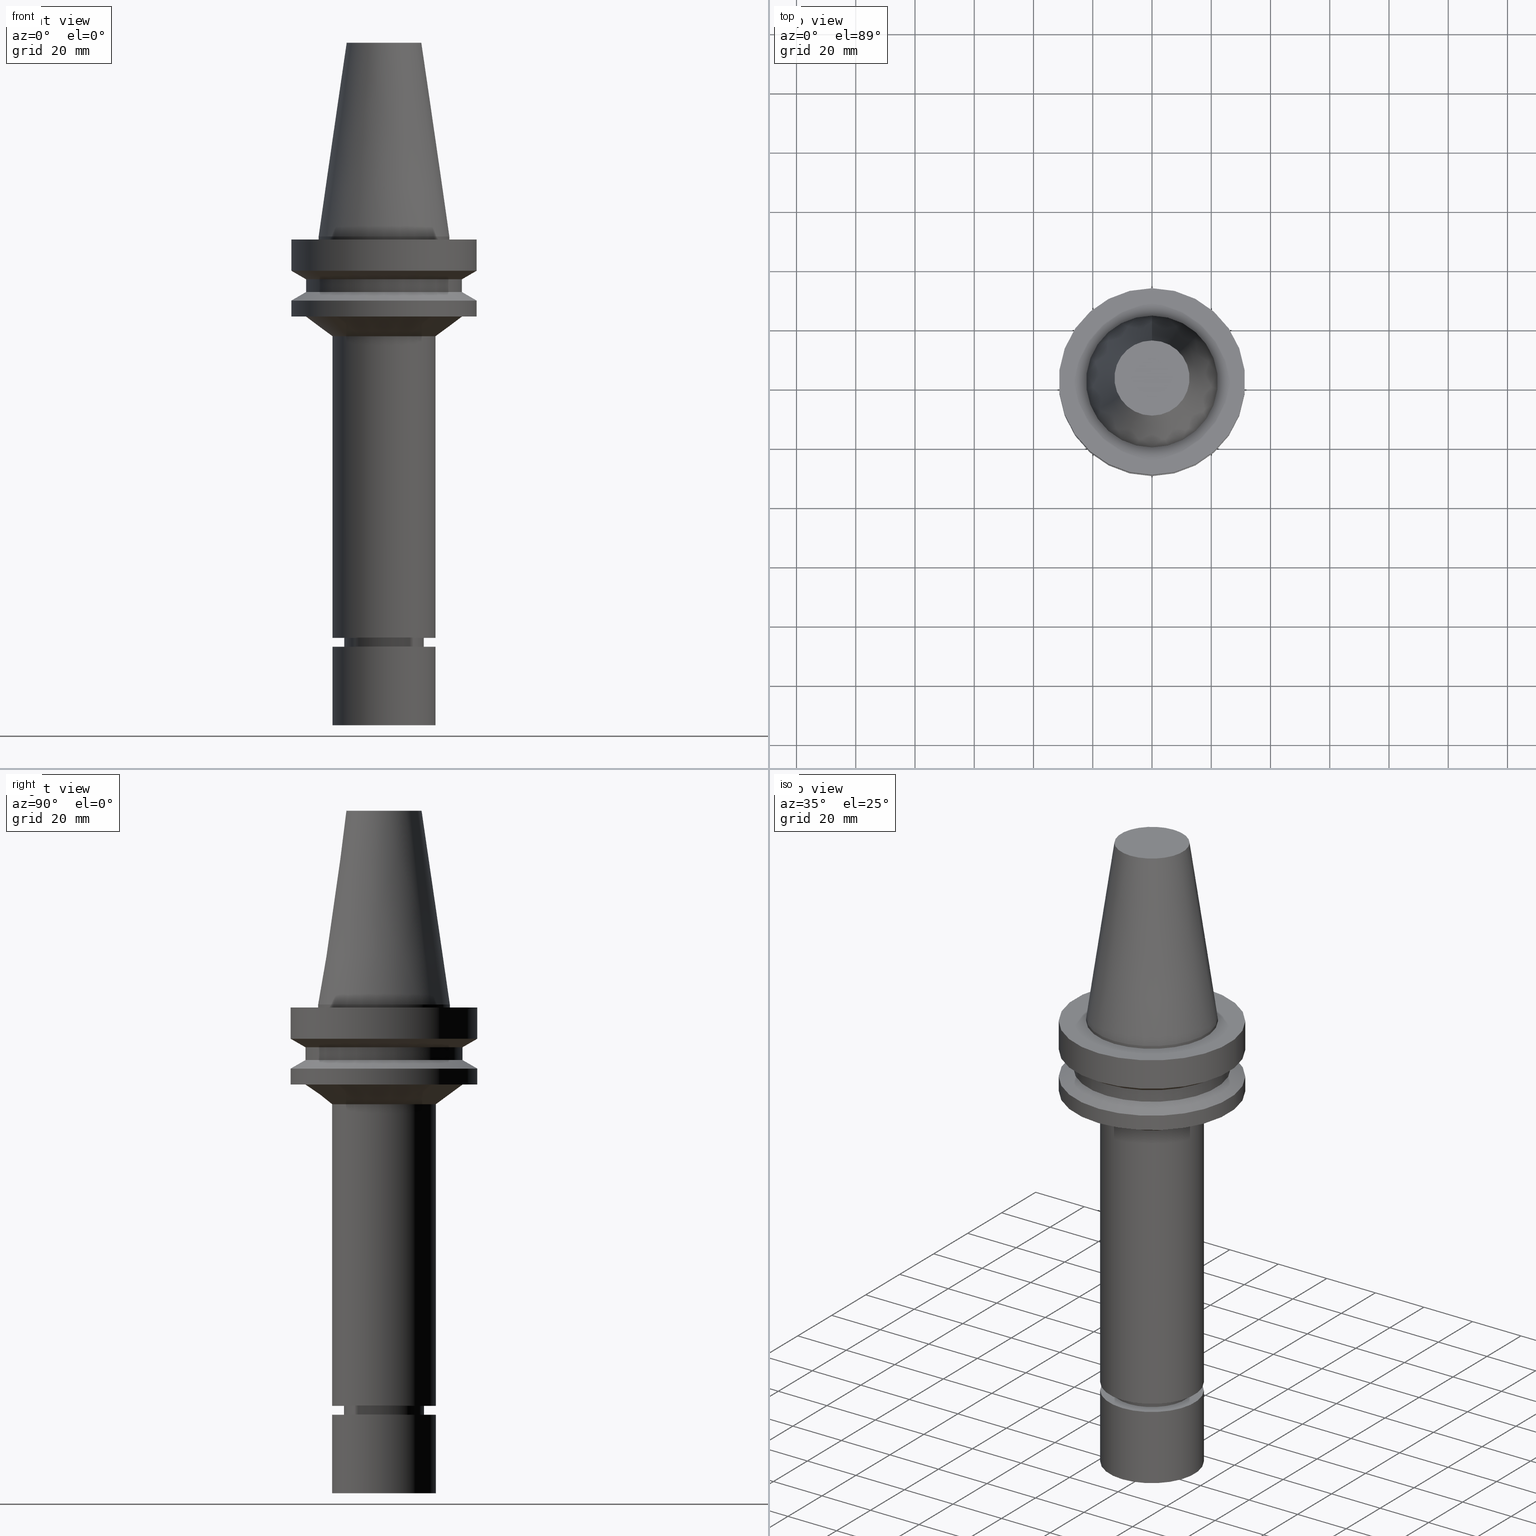
[diagram: canonical four-view strip — front | top / right | iso, engineering-drawing reading convention]
A machine part, canonical four-view strip (front | top / right | iso — engineering-drawing reading convention). The complete STEP part file that produces these views, byte-faithful:
ISO-10303-21;
HEADER;
FILE_DESCRIPTION((''),'1');
FILE_NAME('V:/90_\X2\53D65F9730C730FC30BF\X0\/00_\X2\6DE18DEF30C730FC30BF\X0\/ALL/BBT-BKUS\X2\FF76FF80FF9BFF78FF9E752852A05DE556F3\X0\201801/BBT40-MEGAER/BBT40-MEGAER20-165NL.stp','2018-02-07T02:05:35',(''),(''),'Spatial Interop R21 SP3','Kubotek KeyCreator 2011 V10.0.2 (22737)',' ');
FILE_SCHEMA(('automotive_design'));
ENDSEC;
DATA;
#1=MECHANICAL_DESIGN_GEOMETRIC_PRESENTATION_REPRESENTATION(' ',(#14,#15,#16,#17,#18,#19,#20,#21,#22,#23,#24,#25,#26,#27,#28,#29,#30,#31,#32,#33,#34,#35,#36,#37,#38,#39,#40,#41,#42,#43,#44,#45,#46,#47,#48,#49,#50,#51,#52,#53,#54,#55),#10);
#2=PRODUCT_DEFINITION_CONTEXT('',#56,'design');
#3=APPLICATION_PROTOCOL_DEFINITION('INTERNATIONAL STANDARD','automotive_design',1994,#56);
#4=PRODUCT_CATEGORY_RELATIONSHIP('NONE','NONE',#57,#58);
#5=SHAPE_DEFINITION_REPRESENTATION(#59,#60);
#6=PRODUCT_DEFINITION_CONTEXT('',#61,'design');
#7=APPLICATION_PROTOCOL_DEFINITION('INTERNATIONAL STANDARD','automotive_design',1994,#61);
#8=PRODUCT_CATEGORY_RELATIONSHIP('NONE','NONE',#62,#63);
#9=SHAPE_DEFINITION_REPRESENTATION(#64,#65);
#10= (GEOMETRIC_REPRESENTATION_CONTEXT(3)GLOBAL_UNCERTAINTY_ASSIGNED_CONTEXT((#68))GLOBAL_UNIT_ASSIGNED_CONTEXT((#70,#71,#72))REPRESENTATION_CONTEXT('NONE','WORKSPACE'));
#14=STYLED_ITEM('',(#74,#75),#76);
#15=STYLED_ITEM('',(#77,#78),#79);
#16=STYLED_ITEM('',(#80,#81),#82);
#17=STYLED_ITEM('',(#83),#84);
#18=STYLED_ITEM('',(#85,#86),#87);
#19=STYLED_ITEM('',(#88,#89),#90);
#20=STYLED_ITEM('',(#91,#92),#93);
#21=STYLED_ITEM('',(#94,#95),#96);
#22=STYLED_ITEM('',(#97),#98);
#23=STYLED_ITEM('',(#99),#100);
#24=STYLED_ITEM('',(#101,#102),#103);
#25=STYLED_ITEM('',(#104,#105),#106);
#26=STYLED_ITEM('',(#107,#108),#109);
#27=STYLED_ITEM('',(#110),#111);
#28=STYLED_ITEM('',(#112),#113);
#29=STYLED_ITEM('',(#114,#115),#116);
#30=STYLED_ITEM('',(#117),#118);
#31=STYLED_ITEM('',(#119),#120);
#32=STYLED_ITEM('',(#121),#122);
#33=STYLED_ITEM('',(#123),#124);
#34=STYLED_ITEM('',(#125),#126);
#35=STYLED_ITEM('',(#127,#128),#129);
#36=STYLED_ITEM('',(#130,#131),#132);
#37=STYLED_ITEM('',(#133,#134),#135);
#38=STYLED_ITEM('',(#136),#137);
#39=STYLED_ITEM('',(#138),#139);
#40=STYLED_ITEM('',(#140),#141);
#41=STYLED_ITEM('',(#142),#143);
#42=STYLED_ITEM('',(#144),#145);
#43=STYLED_ITEM('',(#146,#147),#148);
#44=STYLED_ITEM('',(#149,#150),#151);
#45=STYLED_ITEM('',(#152),#153);
#46=STYLED_ITEM('',(#154,#155),#156);
#47=STYLED_ITEM('',(#157,#158),#159);
#48=STYLED_ITEM('',(#160),#161);
#49=STYLED_ITEM('',(#162,#163),#164);
#50=STYLED_ITEM('',(#165),#166);
#51=STYLED_ITEM('',(#167,#168),#169);
#52=STYLED_ITEM('',(#170,#171),#172);
#53=STYLED_ITEM('',(#173,#174),#175);
#54=STYLED_ITEM('',(#176,#177),#178);
#55=STYLED_ITEM('',(#179),#180);
#56=APPLICATION_CONTEXT(' ');
#57=PRODUCT_CATEGORY('part','NONE');
#58=PRODUCT_RELATED_PRODUCT_CATEGORY('detail',' ',(#181));
#59=PRODUCT_DEFINITION_SHAPE('NONE','NONE',#182);
#60=ADVANCED_BREP_SHAPE_REPRESENTATION('Unnamed[1]',(#129,#183),#10);
#61=APPLICATION_CONTEXT(' ');
#62=PRODUCT_CATEGORY('part','NONE');
#63=PRODUCT_RELATED_PRODUCT_CATEGORY('detail',' ',(#184));
#64=PRODUCT_DEFINITION_SHAPE('NONE','NONE',#185);
#65=ADVANCED_BREP_SHAPE_REPRESENTATION('Unnamed[1]',(#172,#186),#10);
#68=UNCERTAINTY_MEASURE_WITH_UNIT(LENGTH_MEASURE(1.0E-006),#70,'','');
#70= (CONVERSION_BASED_UNIT('MILLIMETRE',#189)LENGTH_UNIT()NAMED_UNIT(#192));
#71= (NAMED_UNIT(#194)PLANE_ANGLE_UNIT()SI_UNIT($,.RADIAN.));
#72= (NAMED_UNIT(#194)SOLID_ANGLE_UNIT()SI_UNIT($,.STERADIAN.));
#74=PRESENTATION_STYLE_ASSIGNMENT((#200));
#75=PRESENTATION_STYLE_ASSIGNMENT((#201));
#76=ADVANCED_FACE('Unnamed[1]',(#202,#203),#204,.T.);
#77=PRESENTATION_STYLE_ASSIGNMENT((#205));
#78=PRESENTATION_STYLE_ASSIGNMENT((#206));
#79=ADVANCED_FACE('Unnamed[1]',(#207),#208,.T.);
#80=PRESENTATION_STYLE_ASSIGNMENT((#209));
#81=PRESENTATION_STYLE_ASSIGNMENT((#210));
#82=ADVANCED_FACE('Unnamed[1]',(#211,#212),#213,.T.);
#83=PRESENTATION_STYLE_ASSIGNMENT((#214));
#84=EDGE_CURVE('Unnamed[1]',#215,#215,#216,.T.);
#85=PRESENTATION_STYLE_ASSIGNMENT((#217));
#86=PRESENTATION_STYLE_ASSIGNMENT((#218));
#87=ADVANCED_FACE('Unnamed[1]',(#219,#220),#221,.T.);
#88=PRESENTATION_STYLE_ASSIGNMENT((#222));
#89=PRESENTATION_STYLE_ASSIGNMENT((#223));
#90=ADVANCED_FACE('Unnamed[1]',(#224,#225),#226,.T.);
#91=PRESENTATION_STYLE_ASSIGNMENT((#227));
#92=PRESENTATION_STYLE_ASSIGNMENT((#228));
#93=ADVANCED_FACE('Unnamed[1]',(#229,#230),#231,.T.);
#94=PRESENTATION_STYLE_ASSIGNMENT((#232));
#95=PRESENTATION_STYLE_ASSIGNMENT((#233));
#96=ADVANCED_FACE('Unnamed[1]',(#234),#235,.T.);
#97=PRESENTATION_STYLE_ASSIGNMENT((#236));
#98=EDGE_CURVE('Unnamed[1]',#237,#237,#238,.T.);
#99=PRESENTATION_STYLE_ASSIGNMENT((#239));
#100=EDGE_CURVE('Unnamed[1]',#240,#240,#241,.T.);
#101=PRESENTATION_STYLE_ASSIGNMENT((#242));
#102=PRESENTATION_STYLE_ASSIGNMENT((#243));
#103=ADVANCED_FACE('Unnamed[1]',(#244,#245),#246,.T.);
#104=PRESENTATION_STYLE_ASSIGNMENT((#247));
#105=PRESENTATION_STYLE_ASSIGNMENT((#248));
#106=ADVANCED_FACE('Unnamed[1]',(#249,#250),#251,.T.);
#107=PRESENTATION_STYLE_ASSIGNMENT((#252));
#108=PRESENTATION_STYLE_ASSIGNMENT((#253));
#109=ADVANCED_FACE('Unnamed[1]',(#254),#255,.T.);
#110=PRESENTATION_STYLE_ASSIGNMENT((#256));
#111=EDGE_CURVE('Unnamed[1]',#257,#257,#258,.T.);
#112=PRESENTATION_STYLE_ASSIGNMENT((#259));
#113=EDGE_CURVE('Unnamed[1]',#260,#260,#261,.T.);
#114=PRESENTATION_STYLE_ASSIGNMENT((#262));
#115=PRESENTATION_STYLE_ASSIGNMENT((#263));
#116=ADVANCED_FACE('Unnamed[1]',(#264,#265),#266,.T.);
#117=PRESENTATION_STYLE_ASSIGNMENT((#267));
#118=EDGE_CURVE('Unnamed[1]',#268,#268,#269,.T.);
#119=PRESENTATION_STYLE_ASSIGNMENT((#270));
#120=EDGE_CURVE('Unnamed[1]',#271,#271,#272,.T.);
#121=PRESENTATION_STYLE_ASSIGNMENT((#273));
#122=EDGE_CURVE('Unnamed[1]',#274,#274,#275,.T.);
#123=PRESENTATION_STYLE_ASSIGNMENT((#276));
#124=EDGE_CURVE('Unnamed[1]',#277,#277,#278,.T.);
#125=PRESENTATION_STYLE_ASSIGNMENT((#279));
#126=EDGE_CURVE('Unnamed[1]',#280,#280,#281,.T.);
#127=PRESENTATION_STYLE_ASSIGNMENT((#282));
#128=PRESENTATION_STYLE_ASSIGNMENT((#283));
#129=MANIFOLD_SOLID_BREP('Unnamed[1]',#284);
#130=PRESENTATION_STYLE_ASSIGNMENT((#285));
#131=PRESENTATION_STYLE_ASSIGNMENT((#286));
#132=ADVANCED_FACE('Unnamed[1]',(#287,#288),#289,.T.);
#133=PRESENTATION_STYLE_ASSIGNMENT((#290));
#134=PRESENTATION_STYLE_ASSIGNMENT((#291));
#135=ADVANCED_FACE('Unnamed[1]',(#292,#293),#294,.T.);
#136=PRESENTATION_STYLE_ASSIGNMENT((#295));
#137=EDGE_CURVE('Unnamed[1]',#296,#296,#297,.T.);
#138=PRESENTATION_STYLE_ASSIGNMENT((#298));
#139=EDGE_CURVE('Unnamed[1]',#299,#299,#300,.T.);
#140=PRESENTATION_STYLE_ASSIGNMENT((#301));
#141=EDGE_CURVE('Unnamed[1]',#302,#302,#303,.T.);
#142=PRESENTATION_STYLE_ASSIGNMENT((#304));
#143=EDGE_CURVE('Unnamed[1]',#305,#305,#306,.T.);
#144=PRESENTATION_STYLE_ASSIGNMENT((#307));
#145=EDGE_CURVE('Unnamed[1]',#308,#308,#309,.T.);
#146=PRESENTATION_STYLE_ASSIGNMENT((#310));
#147=PRESENTATION_STYLE_ASSIGNMENT((#311));
#148=ADVANCED_FACE('Unnamed[1]',(#312,#313),#314,.T.);
#149=PRESENTATION_STYLE_ASSIGNMENT((#315));
#150=PRESENTATION_STYLE_ASSIGNMENT((#316));
#151=ADVANCED_FACE('Unnamed[1]',(#317),#318,.T.);
#152=PRESENTATION_STYLE_ASSIGNMENT((#319));
#153=EDGE_CURVE('Unnamed[1]',#320,#320,#321,.T.);
#154=PRESENTATION_STYLE_ASSIGNMENT((#322));
#155=PRESENTATION_STYLE_ASSIGNMENT((#323));
#156=ADVANCED_FACE('Unnamed[1]',(#324,#325),#326,.T.);
#157=PRESENTATION_STYLE_ASSIGNMENT((#327));
#158=PRESENTATION_STYLE_ASSIGNMENT((#328));
#159=ADVANCED_FACE('Unnamed[1]',(#329,#330),#331,.T.);
#160=PRESENTATION_STYLE_ASSIGNMENT((#332));
#161=EDGE_CURVE('Unnamed[1]',#333,#333,#334,.T.);
#162=PRESENTATION_STYLE_ASSIGNMENT((#335));
#163=PRESENTATION_STYLE_ASSIGNMENT((#336));
#164=ADVANCED_FACE('Unnamed[1]',(#337,#338),#339,.T.);
#165=PRESENTATION_STYLE_ASSIGNMENT((#340));
#166=EDGE_CURVE('Unnamed[1]',#341,#341,#342,.T.);
#167=PRESENTATION_STYLE_ASSIGNMENT((#343));
#168=PRESENTATION_STYLE_ASSIGNMENT((#344));
#169=ADVANCED_FACE('Unnamed[1]',(#345,#346),#347,.T.);
#170=PRESENTATION_STYLE_ASSIGNMENT((#348));
#171=PRESENTATION_STYLE_ASSIGNMENT((#349));
#172=MANIFOLD_SOLID_BREP('Unnamed[1]',#350);
#173=PRESENTATION_STYLE_ASSIGNMENT((#351));
#174=PRESENTATION_STYLE_ASSIGNMENT((#352));
#175=ADVANCED_FACE('Unnamed[1]',(#353,#354),#355,.T.);
#176=PRESENTATION_STYLE_ASSIGNMENT((#356));
#177=PRESENTATION_STYLE_ASSIGNMENT((#357));
#178=ADVANCED_FACE('Unnamed[1]',(#358,#359),#360,.T.);
#179=PRESENTATION_STYLE_ASSIGNMENT((#361));
#180=EDGE_CURVE('Unnamed[1]',#362,#362,#363,.T.);
#181=PRODUCT('Unnamed[1]','Unnamed[1]','PART-Unnamed[1]-DESC',(#364));
#182=PRODUCT_DEFINITION('NONE','NONE',#365,#2);
#183=AXIS2_PLACEMENT_3D('',#366,#367,#368);
#184=PRODUCT('Unnamed[1]','Unnamed[1]','PART-Unnamed[1]-DESC',(#369));
#185=PRODUCT_DEFINITION('NONE','NONE',#370,#6);
#186=AXIS2_PLACEMENT_3D('',#371,#372,#373);
#189=LENGTH_MEASURE_WITH_UNIT(LENGTH_MEASURE(1.0),#374);
#192=DIMENSIONAL_EXPONENTS(1.0,0.0,0.0,0.0,0.0,0.0,0.0);
#194=DIMENSIONAL_EXPONENTS(0.0,0.0,0.0,0.0,0.0,0.0,0.0);
#200=SURFACE_STYLE_USAGE(.BOTH.,#375);
#201=CURVE_STYLE('',#376,POSITIVE_LENGTH_MEASURE(1000.0),#377);
#202=FACE_BOUND('',#378,.T.);
#203=FACE_BOUND('',#379,.T.);
#204=CYLINDRICAL_SURFACE('',#380,17.5000000000003);
#205=SURFACE_STYLE_USAGE(.BOTH.,#381);
#206=CURVE_STYLE('',#382,POSITIVE_LENGTH_MEASURE(1000.0),#383);
#207=FACE_OUTER_BOUND('',#384,.T.);
#208=PLANE('',#385);
#209=SURFACE_STYLE_USAGE(.BOTH.,#386);
#210=CURVE_STYLE('',#387,POSITIVE_LENGTH_MEASURE(1000.0),#388);
#211=FACE_BOUND('',#389,.T.);
#212=FACE_BOUND('',#390,.T.);
#213=CONICAL_SURFACE('',#391,22.0222908518337,0.935754396976013);
#214=CURVE_STYLE('',#392,POSITIVE_LENGTH_MEASURE(1000.0),#393);
#215=VERTEX_POINT('',#394);
#216=CIRCLE('',#395,26.5445817036666);
#217=SURFACE_STYLE_USAGE(.BOTH.,#396);
#218=CURVE_STYLE('',#397,POSITIVE_LENGTH_MEASURE(1000.0),#398);
#219=FACE_BOUND('',#399,.T.);
#220=FACE_BOUND('',#400,.T.);
#221=CYLINDRICAL_SURFACE('',#401,13.4999999999956);
#222=SURFACE_STYLE_USAGE(.BOTH.,#402);
#223=CURVE_STYLE('',#403,POSITIVE_LENGTH_MEASURE(1000.0),#404);
#224=FACE_BOUND('',#405,.T.);
#225=FACE_BOUND('',#406,.T.);
#226=CONICAL_SURFACE('',#407,13.0000000000001,1.0471975511948);
#227=SURFACE_STYLE_USAGE(.BOTH.,#408);
#228=CURVE_STYLE('',#409,POSITIVE_LENGTH_MEASURE(1000.0),#410);
#229=FACE_BOUND('',#411,.T.);
#230=FACE_BOUND('',#412,.T.);
#231=CONICAL_SURFACE('',#413,11.9499999999987,0.523598775598648);
#232=SURFACE_STYLE_USAGE(.BOTH.,#414);
#233=CURVE_STYLE('',#415,POSITIVE_LENGTH_MEASURE(1000.0),#416);
#234=FACE_OUTER_BOUND('',#417,.T.);
#235=PLANE('',#418);
#236=CURVE_STYLE('',#419,POSITIVE_LENGTH_MEASURE(1000.0),#420);
#237=VERTEX_POINT('',#421);
#238=CIRCLE('',#422,12.6875000000001);
#239=CURVE_STYLE('',#423,POSITIVE_LENGTH_MEASURE(1000.0),#424);
#240=VERTEX_POINT('',#425);
#241=CIRCLE('',#426,22.225);
#242=SURFACE_STYLE_USAGE(.BOTH.,#427);
#243=CURVE_STYLE('',#428,POSITIVE_LENGTH_MEASURE(1000.0),#429);
#244=FACE_BOUND('',#430,.T.);
#245=FACE_BOUND('',#431,.T.);
#246=CYLINDRICAL_SURFACE('',#432,31.5000000000005);
#247=SURFACE_STYLE_USAGE(.BOTH.,#433);
#248=CURVE_STYLE('',#434,POSITIVE_LENGTH_MEASURE(1000.0),#435);
#249=FACE_BOUND('',#436,.T.);
#250=FACE_BOUND('',#437,.T.);
#251=CYLINDRICAL_SURFACE('',#438,12.4999999999998);
#252=SURFACE_STYLE_USAGE(.BOTH.,#439);
#253=CURVE_STYLE('',#440,POSITIVE_LENGTH_MEASURE(1000.0),#441);
#254=FACE_OUTER_BOUND('',#442,.T.);
#255=PLANE('',#443);
#256=CURVE_STYLE('',#444,POSITIVE_LENGTH_MEASURE(1000.0),#445);
#257=VERTEX_POINT('',#446);
#258=CIRCLE('',#447,13.5000000000004);
#259=CURVE_STYLE('',#448,POSITIVE_LENGTH_MEASURE(1000.0),#449);
#260=VERTEX_POINT('',#450);
#261=CIRCLE('',#451,12.4999999999997);
#262=SURFACE_STYLE_USAGE(.BOTH.,#452);
#263=CURVE_STYLE('',#453,POSITIVE_LENGTH_MEASURE(1000.0),#454);
#264=FACE_BOUND('',#455,.T.);
#265=FACE_OUTER_BOUND('',#456,.T.);
#266=PLANE('',#457);
#267=CURVE_STYLE('',#458,POSITIVE_LENGTH_MEASURE(1000.0),#459);
#268=VERTEX_POINT('',#460);
#269=CIRCLE('',#461,31.5000000000003);
#270=CURVE_STYLE('',#462,POSITIVE_LENGTH_MEASURE(1000.0),#463);
#271=VERTEX_POINT('',#464);
#272=CIRCLE('',#465,26.4999999999994);
#273=CURVE_STYLE('',#466,POSITIVE_LENGTH_MEASURE(1000.0),#467);
#274=VERTEX_POINT('',#468);
#275=CIRCLE('',#469,17.4999999999998);
#276=CURVE_STYLE('',#470,POSITIVE_LENGTH_MEASURE(1000.0),#471);
#277=VERTEX_POINT('',#472);
#278=CIRCLE('',#473,22.225);
#279=CURVE_STYLE('',#474,POSITIVE_LENGTH_MEASURE(1000.0),#475);
#280=VERTEX_POINT('',#476);
#281=CIRCLE('',#477,31.5000000000006);
#282=SURFACE_STYLE_USAGE(.BOTH.,#478);
#283=CURVE_STYLE('',#479,POSITIVE_LENGTH_MEASURE(1000.0),#480);
#284=CLOSED_SHELL('',(#79,#132,#169,#159,#164,#148,#175,#178,#103,#156,#82,#76,#116,#87,#90,#106,#93,#96));
#285=SURFACE_STYLE_USAGE(.BOTH.,#481);
#286=CURVE_STYLE('',#482,POSITIVE_LENGTH_MEASURE(1000.0),#483);
#287=FACE_BOUND('',#484,.T.);
#288=FACE_BOUND('',#485,.T.);
#289=CONICAL_SURFACE('',#486,17.45625,0.144812498238936);
#290=SURFACE_STYLE_USAGE(.BOTH.,#487);
#291=CURVE_STYLE('',#488,POSITIVE_LENGTH_MEASURE(1000.0),#489);
#292=FACE_BOUND('',#490,.T.);
#293=FACE_BOUND('',#491,.T.);
#294=CYLINDRICAL_SURFACE('',#492,17.4999999999999);
#295=CURVE_STYLE('',#493,POSITIVE_LENGTH_MEASURE(1000.0),#494);
#296=VERTEX_POINT('',#495);
#297=CIRCLE('',#496,17.4999999999999);
#298=CURVE_STYLE('',#497,POSITIVE_LENGTH_MEASURE(1000.0),#498);
#299=VERTEX_POINT('',#499);
#300=CIRCLE('',#500,12.4999999999998);
#301=CURVE_STYLE('',#501,POSITIVE_LENGTH_MEASURE(1000.0),#502);
#302=VERTEX_POINT('',#503);
#303=CIRCLE('',#504,26.5);
#304=CURVE_STYLE('',#505,POSITIVE_LENGTH_MEASURE(1000.0),#506);
#305=VERTEX_POINT('',#507);
#306=CIRCLE('',#508,31.4999999999996);
#307=CURVE_STYLE('',#509,POSITIVE_LENGTH_MEASURE(1000.0),#510);
#308=VERTEX_POINT('',#511);
#309=CIRCLE('',#512,13.4999999999907);
#310=SURFACE_STYLE_USAGE(.BOTH.,#513);
#311=CURVE_STYLE('',#514,POSITIVE_LENGTH_MEASURE(1000.0),#515);
#312=FACE_BOUND('',#516,.T.);
#313=FACE_BOUND('',#517,.T.);
#314=CONICAL_SURFACE('',#518,28.9999999999999,1.04719755119657);
#315=SURFACE_STYLE_USAGE(.BOTH.,#519);
#316=CURVE_STYLE('',#520,POSITIVE_LENGTH_MEASURE(1000.0),#521);
#317=FACE_OUTER_BOUND('',#522,.T.);
#318=PLANE('',#523);
#319=CURVE_STYLE('',#524,POSITIVE_LENGTH_MEASURE(1000.0),#525);
#320=VERTEX_POINT('',#526);
#321=CIRCLE('',#527,11.3999999999977);
#322=SURFACE_STYLE_USAGE(.BOTH.,#528);
#323=CURVE_STYLE('',#529,POSITIVE_LENGTH_MEASURE(1000.0),#530);
#324=FACE_BOUND('',#531,.T.);
#325=FACE_OUTER_BOUND('',#532,.T.);
#326=PLANE('',#533);
#327=SURFACE_STYLE_USAGE(.BOTH.,#534);
#328=CURVE_STYLE('',#535,POSITIVE_LENGTH_MEASURE(1000.0),#536);
#329=FACE_OUTER_BOUND('',#537,.T.);
#330=FACE_BOUND('',#538,.T.);
#331=PLANE('',#539);
#332=CURVE_STYLE('',#540,POSITIVE_LENGTH_MEASURE(1000.0),#541);
#333=VERTEX_POINT('',#542);
#334=CIRCLE('',#543,17.5000000000009);
#335=SURFACE_STYLE_USAGE(.BOTH.,#544);
#336=CURVE_STYLE('',#545,POSITIVE_LENGTH_MEASURE(1000.0),#546);
#337=FACE_BOUND('',#547,.T.);
#338=FACE_BOUND('',#548,.T.);
#339=CYLINDRICAL_SURFACE('',#549,31.5);
#340=CURVE_STYLE('',#550,POSITIVE_LENGTH_MEASURE(1000.0),#551);
#341=VERTEX_POINT('',#552);
#342=CIRCLE('',#553,31.5000000000003);
#343=SURFACE_STYLE_USAGE(.BOTH.,#554);
#344=CURVE_STYLE('',#555,POSITIVE_LENGTH_MEASURE(1000.0),#556);
#345=FACE_BOUND('',#557,.T.);
#346=FACE_BOUND('',#558,.T.);
#347=CYLINDRICAL_SURFACE('',#559,22.225);
#348=SURFACE_STYLE_USAGE(.BOTH.,#560);
#349=CURVE_STYLE('',#561,POSITIVE_LENGTH_MEASURE(1000.0),#562);
#350=CLOSED_SHELL('',(#151,#109,#135));
#351=SURFACE_STYLE_USAGE(.BOTH.,#563);
#352=CURVE_STYLE('',#564,POSITIVE_LENGTH_MEASURE(1000.0),#565);
#353=FACE_BOUND('',#566,.T.);
#354=FACE_BOUND('',#567,.T.);
#355=CYLINDRICAL_SURFACE('',#568,26.4999999999997);
#356=SURFACE_STYLE_USAGE(.BOTH.,#569);
#357=CURVE_STYLE('',#570,POSITIVE_LENGTH_MEASURE(1000.0),#571);
#358=FACE_BOUND('',#572,.T.);
#359=FACE_BOUND('',#573,.T.);
#360=CONICAL_SURFACE('',#574,29.0000000000003,1.04719755119651);
#361=CURVE_STYLE('',#575,POSITIVE_LENGTH_MEASURE(1000.0),#576);
#362=VERTEX_POINT('',#577);
#363=CIRCLE('',#578,17.4999999999999);
#364=PRODUCT_CONTEXT('',#56,'mechanical');
#365=PRODUCT_DEFINITION_FORMATION_WITH_SPECIFIED_SOURCE(' ','NONE',#181,.NOT_KNOWN.);
#366=CARTESIAN_POINT('',(0.0,0.0,0.0));
#367=DIRECTION('',(0.0,0.0,1.0));
#368=DIRECTION('',(1.0,0.0,0.0));
#369=PRODUCT_CONTEXT('',#61,'mechanical');
#370=PRODUCT_DEFINITION_FORMATION_WITH_SPECIFIED_SOURCE(' ','NONE',#184,.NOT_KNOWN.);
#371=CARTESIAN_POINT('',(0.0,0.0,0.0));
#372=DIRECTION('',(0.0,0.0,1.0));
#373=DIRECTION('',(1.0,0.0,0.0));
#374= (NAMED_UNIT(#192)LENGTH_UNIT()SI_UNIT(.MILLI.,.METRE.));
#375=SURFACE_SIDE_STYLE('',(#580));
#376=DRAUGHTING_PRE_DEFINED_CURVE_FONT('continuous');
#377=COLOUR_RGB('',0.0,1.0,0.0);
#378=EDGE_LOOP('',(#581));
#379=EDGE_LOOP('',(#582));
#380=AXIS2_PLACEMENT_3D('',#583,#584,#585);
#381=SURFACE_SIDE_STYLE('',(#586));
#382=DRAUGHTING_PRE_DEFINED_CURVE_FONT('continuous');
#383=COLOUR_RGB('',0.0,1.0,0.0);
#384=EDGE_LOOP('',(#587));
#385=AXIS2_PLACEMENT_3D('',#588,#589,#590);
#386=SURFACE_SIDE_STYLE('',(#591));
#387=DRAUGHTING_PRE_DEFINED_CURVE_FONT('continuous');
#388=COLOUR_RGB('',0.0,1.0,0.0);
#389=EDGE_LOOP('',(#592));
#390=EDGE_LOOP('',(#593));
#391=AXIS2_PLACEMENT_3D('',#594,#595,#596);
#392=DRAUGHTING_PRE_DEFINED_CURVE_FONT('continuous');
#393=COLOUR_RGB('',0.0,1.0,0.0);
#394=CARTESIAN_POINT('',(1.65327317884891E-015,26.5445817036666,-26.9999999999998));
#395=AXIS2_PLACEMENT_3D('',#597,#598,#599);
#396=SURFACE_SIDE_STYLE('',(#600));
#397=DRAUGHTING_PRE_DEFINED_CURVE_FONT('continuous');
#398=COLOUR_RGB('',0.0,1.0,0.0);
#399=EDGE_LOOP('',(#601));
#400=EDGE_LOOP('',(#602));
#401=AXIS2_PLACEMENT_3D('',#603,#604,#605);
#402=SURFACE_SIDE_STYLE('',(#606));
#403=DRAUGHTING_PRE_DEFINED_CURVE_FONT('continuous');
#404=COLOUR_RGB('',0.0,1.0,0.0);
#405=EDGE_LOOP('',(#607));
#406=EDGE_LOOP('',(#608));
#407=AXIS2_PLACEMENT_3D('',#609,#610,#611);
#408=SURFACE_SIDE_STYLE('',(#612));
#409=DRAUGHTING_PRE_DEFINED_CURVE_FONT('continuous');
#410=COLOUR_RGB('',0.0,1.0,0.0);
#411=EDGE_LOOP('',(#613));
#412=EDGE_LOOP('',(#614));
#413=AXIS2_PLACEMENT_3D('',#615,#616,#617);
#414=SURFACE_SIDE_STYLE('',(#618));
#415=DRAUGHTING_PRE_DEFINED_CURVE_FONT('continuous');
#416=COLOUR_RGB('',0.0,1.0,0.0);
#417=EDGE_LOOP('',(#619));
#418=AXIS2_PLACEMENT_3D('',#620,#621,#622);
#419=DRAUGHTING_PRE_DEFINED_CURVE_FONT('continuous');
#420=COLOUR_RGB('',0.0,1.0,0.0);
#421=CARTESIAN_POINT('',(-4.00459503321185E-015,12.6875000000002,65.4000000000001));
#422=AXIS2_PLACEMENT_3D('',#623,#624,#625);
#423=DRAUGHTING_PRE_DEFINED_CURVE_FONT('continuous');
#424=COLOUR_RGB('',0.0,1.0,0.0);
#425=CARTESIAN_POINT('',(6.12323399573622E-017,22.2250000000001,-0.999999999999912));
#426=AXIS2_PLACEMENT_3D('',#626,#627,#628);
#427=SURFACE_SIDE_STYLE('',(#629));
#428=DRAUGHTING_PRE_DEFINED_CURVE_FONT('continuous');
#429=COLOUR_RGB('',0.0,1.0,0.0);
#430=EDGE_LOOP('',(#630));
#431=EDGE_LOOP('',(#631));
#432=AXIS2_PLACEMENT_3D('',#632,#633,#634);
#433=SURFACE_SIDE_STYLE('',(#635));
#434=DRAUGHTING_PRE_DEFINED_CURVE_FONT('continuous');
#435=COLOUR_RGB('',0.0,1.0,0.0);
#436=EDGE_LOOP('',(#636));
#437=EDGE_LOOP('',(#637));
#438=AXIS2_PLACEMENT_3D('',#638,#639,#640);
#439=SURFACE_SIDE_STYLE('',(#641));
#440=DRAUGHTING_PRE_DEFINED_CURVE_FONT('continuous');
#441=COLOUR_RGB('',0.0,1.0,0.0);
#442=EDGE_LOOP('',(#642));
#443=AXIS2_PLACEMENT_3D('',#643,#644,#645);
#444=DRAUGHTING_PRE_DEFINED_CURVE_FONT('continuous');
#445=COLOUR_RGB('',0.0,1.0,0.0);
#446=CARTESIAN_POINT('',(8.65349663972404E-015,13.5000000000005,-141.322324865405));
#447=AXIS2_PLACEMENT_3D('',#646,#647,#648);
#448=DRAUGHTING_PRE_DEFINED_CURVE_FONT('continuous');
#449=COLOUR_RGB('',0.0,1.0,0.0);
#450=CARTESIAN_POINT('',(9.38659588512361E-015,12.4999999999998,-153.294744111672));
#451=AXIS2_PLACEMENT_3D('',#649,#650,#651);
#452=SURFACE_SIDE_STYLE('',(#652));
#453=DRAUGHTING_PRE_DEFINED_CURVE_FONT('continuous');
#454=COLOUR_RGB('',0.0,1.0,0.0);
#455=EDGE_LOOP('',(#653));
#456=EDGE_LOOP('',(#654));
#457=AXIS2_PLACEMENT_3D('',#655,#656,#657);
#458=DRAUGHTING_PRE_DEFINED_CURVE_FONT('continuous');
#459=COLOUR_RGB('',0.0,1.0,0.0);
#460=CARTESIAN_POINT('',(1.65327317884891E-015,31.5000000000004,-26.9999999999998));
#461=AXIS2_PLACEMENT_3D('',#658,#659,#660);
#462=DRAUGHTING_PRE_DEFINED_CURVE_FONT('continuous');
#463=COLOUR_RGB('',0.0,1.0,0.0);
#464=CARTESIAN_POINT('',(8.8494551369045E-016,26.4999999999995,-14.4522569986152));
#465=AXIS2_PLACEMENT_3D('',#661,#662,#663);
#466=DRAUGHTING_PRE_DEFINED_CURVE_FONT('continuous');
#467=COLOUR_RGB('',0.0,1.0,0.0);
#468=CARTESIAN_POINT('',(8.2969820642233E-015,17.4999999999999,-135.5));
#469=AXIS2_PLACEMENT_3D('',#664,#665,#666);
#470=DRAUGHTING_PRE_DEFINED_CURVE_FONT('continuous');
#471=COLOUR_RGB('',0.0,1.0,0.0);
#472=CARTESIAN_POINT('',(1.71319921032766E-029,22.2250000000001,-2.8153873565375E-013));
#473=AXIS2_PLACEMENT_3D('',#667,#668,#669);
#474=DRAUGHTING_PRE_DEFINED_CURVE_FONT('continuous');
#475=COLOUR_RGB('',0.0,1.0,0.0);
#476=CARTESIAN_POINT('',(1.32473071268174E-015,31.5000000000007,-21.6344943473346));
#477=AXIS2_PLACEMENT_3D('',#670,#671,#672);
#478=SURFACE_SIDE_STYLE('',(#673));
#479=DRAUGHTING_PRE_DEFINED_CURVE_FONT('continuous');
#480=COLOUR_RGB('',0.0,1.0,0.0);
#481=SURFACE_SIDE_STYLE('',(#674));
#482=DRAUGHTING_PRE_DEFINED_CURVE_FONT('continuous');
#483=COLOUR_RGB('',0.0,1.0,0.0);
#484=EDGE_LOOP('',(#675));
#485=EDGE_LOOP('',(#676));
#486=AXIS2_PLACEMENT_3D('',#677,#678,#679);
#487=SURFACE_SIDE_STYLE('',(#680));
#488=DRAUGHTING_PRE_DEFINED_CURVE_FONT('continuous');
#489=COLOUR_RGB('',0.0,1.0,0.0);
#490=EDGE_LOOP('',(#681));
#491=EDGE_LOOP('',(#682));
#492=AXIS2_PLACEMENT_3D('',#683,#684,#685);
#493=DRAUGHTING_PRE_DEFINED_CURVE_FONT('continuous');
#494=COLOUR_RGB('',0.0,1.0,0.0);
#495=CARTESIAN_POINT('',(1.01033360929657E-014,17.5,-165.0));
#496=AXIS2_PLACEMENT_3D('',#686,#687,#688);
#497=DRAUGHTING_PRE_DEFINED_CURVE_FONT('continuous');
#498=COLOUR_RGB('',0.0,1.0,0.0);
#499=CARTESIAN_POINT('',(8.6888491476817E-015,12.4999999999999,-141.899675134597));
#500=AXIS2_PLACEMENT_3D('',#689,#690,#691);
#501=DRAUGHTING_PRE_DEFINED_CURVE_FONT('continuous');
#502=COLOUR_RGB('',0.0,1.0,0.0);
#503=CARTESIAN_POINT('',(1.1479681728942E-015,26.5,-18.7477430013855));
#504=AXIS2_PLACEMENT_3D('',#692,#693,#694);
#505=DRAUGHTING_PRE_DEFINED_CURVE_FONT('continuous');
#506=COLOUR_RGB('',0.0,1.0,0.0);
#507=CARTESIAN_POINT('',(6.12323399573568E-017,31.4999999999997,-0.999999999999825));
#508=AXIS2_PLACEMENT_3D('',#695,#696,#697);
#509=DRAUGHTING_PRE_DEFINED_CURVE_FONT('continuous');
#510=COLOUR_RGB('',0.0,1.0,0.0);
#511=CARTESIAN_POINT('',(8.29698206422329E-015,13.4999999999908,-135.5));
#512=AXIS2_PLACEMENT_3D('',#698,#699,#700);
#513=SURFACE_SIDE_STYLE('',(#701));
#514=DRAUGHTING_PRE_DEFINED_CURVE_FONT('continuous');
#515=COLOUR_RGB('',0.0,1.0,0.0);
#516=EDGE_LOOP('',(#702));
#517=EDGE_LOOP('',(#703));
#518=AXIS2_PLACEMENT_3D('',#704,#705,#706);
#519=SURFACE_SIDE_STYLE('',(#707));
#520=DRAUGHTING_PRE_DEFINED_CURVE_FONT('continuous');
#521=COLOUR_RGB('',0.0,1.0,0.0);
#522=EDGE_LOOP('',(#708));
#523=AXIS2_PLACEMENT_3D('',#709,#710,#711);
#524=DRAUGHTING_PRE_DEFINED_CURVE_FONT('continuous');
#525=COLOUR_RGB('',0.0,1.0,0.0);
#526=CARTESIAN_POINT('',(9.50325916138347E-015,11.3999999999978,-155.2));
#527=AXIS2_PLACEMENT_3D('',#712,#713,#714);
#528=SURFACE_SIDE_STYLE('',(#715));
#529=DRAUGHTING_PRE_DEFINED_CURVE_FONT('continuous');
#530=COLOUR_RGB('',0.0,1.0,0.0);
#531=EDGE_LOOP('',(#716));
#532=EDGE_LOOP('',(#717));
#533=AXIS2_PLACEMENT_3D('',#718,#719,#720);
#534=SURFACE_SIDE_STYLE('',(#721));
#535=DRAUGHTING_PRE_DEFINED_CURVE_FONT('continuous');
#536=COLOUR_RGB('',0.0,1.0,0.0);
#537=EDGE_LOOP('',(#722));
#538=EDGE_LOOP('',(#723));
#539=AXIS2_PLACEMENT_3D('',#724,#725,#726);
#540=DRAUGHTING_PRE_DEFINED_CURVE_FONT('continuous');
#541=COLOUR_RGB('',0.0,1.0,0.0);
#542=CARTESIAN_POINT('',(2.0613647219023E-015,17.5000000000009,-33.6646406676195));
#543=AXIS2_PLACEMENT_3D('',#727,#728,#729);
#544=SURFACE_SIDE_STYLE('',(#730));
#545=DRAUGHTING_PRE_DEFINED_CURVE_FONT('continuous');
#546=COLOUR_RGB('',0.0,1.0,0.0);
#547=EDGE_LOOP('',(#731));
#548=EDGE_LOOP('',(#732));
#549=AXIS2_PLACEMENT_3D('',#733,#734,#735);
#550=DRAUGHTING_PRE_DEFINED_CURVE_FONT('continuous');
#551=COLOUR_RGB('',0.0,1.0,0.0);
#552=CARTESIAN_POINT('',(7.08182973902924E-016,31.5000000000004,-11.5655056526664));
#553=AXIS2_PLACEMENT_3D('',#736,#737,#738);
#554=SURFACE_SIDE_STYLE('',(#739));
#555=DRAUGHTING_PRE_DEFINED_CURVE_FONT('continuous');
#556=COLOUR_RGB('',0.0,1.0,0.0);
#557=EDGE_LOOP('',(#740));
#558=EDGE_LOOP('',(#741));
#559=AXIS2_PLACEMENT_3D('',#742,#743,#744);
#560=SURFACE_SIDE_STYLE('',(#745));
#561=DRAUGHTING_PRE_DEFINED_CURVE_FONT('continuous');
#562=COLOUR_RGB('',0.0,1.0,0.0);
#563=SURFACE_SIDE_STYLE('',(#746));
#564=DRAUGHTING_PRE_DEFINED_CURVE_FONT('continuous');
#565=COLOUR_RGB('',0.0,1.0,0.0);
#566=EDGE_LOOP('',(#747));
#567=EDGE_LOOP('',(#748));
#568=AXIS2_PLACEMENT_3D('',#749,#750,#751);
#569=SURFACE_SIDE_STYLE('',(#752));
#570=DRAUGHTING_PRE_DEFINED_CURVE_FONT('continuous');
#571=COLOUR_RGB('',0.0,1.0,0.0);
#572=EDGE_LOOP('',(#753));
#573=EDGE_LOOP('',(#754));
#574=AXIS2_PLACEMENT_3D('',#755,#756,#757);
#575=DRAUGHTING_PRE_DEFINED_CURVE_FONT('continuous');
#576=COLOUR_RGB('',0.0,1.0,0.0);
#577=CARTESIAN_POINT('',(8.48068001842678E-015,17.5,-138.500015258789));
#578=AXIS2_PLACEMENT_3D('',#758,#759,#760);
#580=SURFACE_STYLE_FILL_AREA(#761);
#581=ORIENTED_EDGE('',*,*,#122,.F.);
#582=ORIENTED_EDGE('',*,*,#161,.T.);
#583=CARTESIAN_POINT('',(5.1791733930628E-015,6.71629408254139E-014,-84.5823203338096));
#584=DIRECTION('',(6.12323399573676E-017,-6.62687154769285E-017,-1.0));
#585=DIRECTION('',(-7.69364216147669E-034,1.0,-6.62687154769285E-017));
#586=SURFACE_STYLE_FILL_AREA(#762);
#587=ORIENTED_EDGE('',*,*,#98,.F.);
#588=CARTESIAN_POINT('',(-4.00459503321185E-015,6.34375000000014,65.4000000000001));
#589=DIRECTION('',(-6.12323399573677E-017,9.97602686800683E-016,1.0));
#590=DIRECTION('',(-5.62583941297938E-032,-1.0,9.97602686800683E-016));
#591=SURFACE_STYLE_FILL_AREA(#763);
#592=ORIENTED_EDGE('',*,*,#161,.F.);
#593=ORIENTED_EDGE('',*,*,#84,.T.);
#594=CARTESIAN_POINT('',(1.85731895037561E-015,7.07580186400372E-014,-30.3323203338096));
#595=DIRECTION('',(-6.12323399573677E-017,6.62687154769284E-017,1.0));
#596=DIRECTION('',(-7.69364216147667E-034,1.0,-6.62687154769285E-017));
#597=CARTESIAN_POINT('',(1.65327317884891E-015,7.09788472281164E-014,-26.9999999999998));
#598=DIRECTION('',(6.12323399573676E-017,-6.62687154769284E-017,-1.0));
#599=DIRECTION('',(-7.69364216147668E-034,1.0,-6.62687154769284E-017));
#600=SURFACE_STYLE_FILL_AREA(#764);
#601=ORIENTED_EDGE('',*,*,#111,.F.);
#602=ORIENTED_EDGE('',*,*,#145,.T.);
#603=CARTESIAN_POINT('',(8.47523935197367E-015,6.35957726039098E-014,-138.411162432702));
#604=DIRECTION('',(6.12323399573677E-017,-6.62687154769284E-017,-1.0));
#605=DIRECTION('',(-7.69364216147669E-034,1.0,-6.62687154769284E-017));
#606=SURFACE_STYLE_FILL_AREA(#765);
#607=ORIENTED_EDGE('',*,*,#139,.F.);
#608=ORIENTED_EDGE('',*,*,#111,.T.);
#609=CARTESIAN_POINT('',(8.67117289370287E-015,6.33837234785901E-014,-141.611000000001));
#610=DIRECTION('',(-6.12323399573677E-017,6.62687154769284E-017,1.0));
#611=DIRECTION('',(-7.69364216147669E-034,1.0,-6.62687154769284E-017));
#612=SURFACE_STYLE_FILL_AREA(#766);
#613=ORIENTED_EDGE('',*,*,#153,.F.);
#614=ORIENTED_EDGE('',*,*,#113,.T.);
#615=CARTESIAN_POINT('',(9.44492752325354E-015,6.25463273341614E-014,-154.247372055836));
#616=DIRECTION('',(-6.12323399573677E-017,6.62687154769284E-017,1.0));
#617=DIRECTION('',(-7.6936421614767E-034,1.0,-6.62687154769284E-017));
#618=SURFACE_STYLE_FILL_AREA(#767);
#619=ORIENTED_EDGE('',*,*,#153,.T.);
#620=CARTESIAN_POINT('',(9.50325916138346E-015,5.69999999999894,-155.2));
#621=DIRECTION('',(6.12323399573677E-017,-7.35693253861411E-015,-1.0));
#622=DIRECTION('',(4.4565504151707E-031,1.0,-7.35693253861411E-015));
#623=CARTESIAN_POINT('',(-4.00459503321185E-015,7.71020765381846E-014,65.4000000000001));
#624=DIRECTION('',(6.12323399573677E-017,-6.62687154769284E-017,-1.0));
#625=DIRECTION('',(-7.69364216147669E-034,1.0,-6.62687154769284E-017));
#626=CARTESIAN_POINT('',(6.12323399573624E-017,7.27018338305166E-014,-0.999999999999915));
#627=DIRECTION('',(6.12323399573677E-017,-6.62687154769284E-017,-1.0));
#628=DIRECTION('',(-7.69364216147669E-034,1.0,-6.62687154769284E-017));
#629=SURFACE_STYLE_FILL_AREA(#768);
#630=ORIENTED_EDGE('',*,*,#118,.F.);
#631=ORIENTED_EDGE('',*,*,#126,.T.);
#632=CARTESIAN_POINT('',(1.48900194576533E-015,7.11566298118596E-014,-24.3172471736672));
#633=DIRECTION('',(6.12323399573677E-017,-6.62687154769284E-017,-1.0));
#634=DIRECTION('',(-7.6936421614767E-034,1.0,-6.62687154769284E-017));
#635=SURFACE_STYLE_FILL_AREA(#769);
#636=ORIENTED_EDGE('',*,*,#113,.F.);
#637=ORIENTED_EDGE('',*,*,#139,.T.);
#638=CARTESIAN_POINT('',(9.03772251640266E-015,6.29870250562894E-014,-147.597209623135));
#639=DIRECTION('',(6.12323399573677E-017,-6.62687154769285E-017,-1.0));
#640=DIRECTION('',(-7.69364216147668E-034,1.0,-6.62687154769285E-017));
#641=SURFACE_STYLE_FILL_AREA(#770);
#642=ORIENTED_EDGE('',*,*,#180,.F.);
#643=CARTESIAN_POINT('',(8.48068001842678E-015,8.75000000000004,-138.500015258789));
#644=DIRECTION('',(-6.12323399573677E-017,-1.22464679914735E-016,1.0));
#645=DIRECTION('',(1.23259516440783E-032,-1.0,-1.22464679914735E-016));
#646=CARTESIAN_POINT('',(8.65349663972404E-015,6.34028536089499E-014,-141.322324865405));
#647=DIRECTION('',(6.12323399573677E-017,-6.62687154769285E-017,-1.0));
#648=DIRECTION('',(-7.69364216147668E-034,1.0,-6.62687154769285E-017));
#649=CARTESIAN_POINT('',(9.38659588512361E-015,6.26094567643485E-014,-153.294744111672));
#650=DIRECTION('',(6.12323399573677E-017,-6.62687154769284E-017,-1.0));
#651=DIRECTION('',(-7.6936421614767E-034,1.0,-6.62687154769284E-017));
#652=SURFACE_STYLE_FILL_AREA(#771);
#653=ORIENTED_EDGE('',*,*,#145,.F.);
#654=ORIENTED_EDGE('',*,*,#122,.T.);
#655=CARTESIAN_POINT('',(8.2969820642233E-015,15.4999999999953,-135.5));
#656=DIRECTION('',(6.12323399573677E-017,-2.119381739284E-014,-1.0));
#657=DIRECTION('',(1.29291987886198E-030,1.0,-2.119381739284E-014));
#658=CARTESIAN_POINT('',(1.65327317884891E-015,7.09788472281164E-014,-26.9999999999998));
#659=DIRECTION('',(6.12323399573677E-017,-6.62687154769284E-017,-1.0));
#660=DIRECTION('',(-7.69364216147669E-034,1.0,-6.62687154769284E-017));
#661=CARTESIAN_POINT('',(8.84945513690451E-016,7.18103700389528E-014,-14.4522569986152));
#662=DIRECTION('',(6.12323399573677E-017,-6.62687154769284E-017,-1.0));
#663=DIRECTION('',(-7.69364216147669E-034,1.0,-6.62687154769284E-017));
#664=CARTESIAN_POINT('',(8.2969820642233E-015,6.37886915988697E-014,-135.5));
#665=DIRECTION('',(6.12323399573677E-017,-6.62687154769284E-017,-1.0));
#666=DIRECTION('',(-7.6936421614767E-034,1.0,-6.62687154769284E-017));
#667=CARTESIAN_POINT('',(1.74032777401202E-029,7.27681025459935E-014,-2.8421709430404E-013));
#668=DIRECTION('',(6.12323399573677E-017,-6.62687154769284E-017,-1.0));
#669=DIRECTION('',(-7.69364216147669E-034,1.0,-6.62687154769284E-017));
#670=CARTESIAN_POINT('',(1.32473071268174E-015,7.13344123956028E-014,-21.6344943473347));
#671=DIRECTION('',(6.12323399573677E-017,-6.62687154769284E-017,-1.0));
#672=DIRECTION('',(-7.69364216147668E-034,1.0,-6.62687154769284E-017));
#673=SURFACE_STYLE_FILL_AREA(#772);
#674=SURFACE_STYLE_FILL_AREA(#773);
#675=ORIENTED_EDGE('',*,*,#124,.F.);
#676=ORIENTED_EDGE('',*,*,#98,.T.);
#677=CARTESIAN_POINT('',(-2.00229751660592E-015,7.4935089542089E-014,32.6999999999999));
#678=DIRECTION('',(6.12323399573677E-017,-6.62687154769284E-017,-1.0));
#679=DIRECTION('',(-7.69364216147669E-034,1.0,-6.62687154769284E-017));
#680=SURFACE_STYLE_FILL_AREA(#774);
#681=ORIENTED_EDGE('',*,*,#137,.F.);
#682=ORIENTED_EDGE('',*,*,#180,.T.);
#683=CARTESIAN_POINT('',(9.29200805569622E-015,6.27118244667794E-014,-151.750007629394));
#684=DIRECTION('',(6.12323399573677E-017,-6.62687154769284E-017,-1.0));
#685=DIRECTION('',(-7.69364216147668E-034,1.0,-6.62687154769284E-017));
#686=CARTESIAN_POINT('',(1.01033360929657E-014,6.18337644923003E-014,-165.0));
#687=DIRECTION('',(6.12323399573677E-017,-6.62687154769284E-017,-1.0));
#688=DIRECTION('',(-7.69364216147668E-034,1.0,-6.62687154769284E-017));
#689=CARTESIAN_POINT('',(8.6888491476817E-015,6.33645933482303E-014,-141.899675134597));
#690=DIRECTION('',(6.12323399573677E-017,-6.62687154769285E-017,-1.0));
#691=DIRECTION('',(-7.69364216147668E-034,1.0,-6.62687154769284E-017));
#692=CARTESIAN_POINT('',(1.1479681728942E-015,7.15257136992001E-014,-18.7477430013855));
#693=DIRECTION('',(6.12323399573677E-017,-6.62687154769284E-017,-1.0));
#694=DIRECTION('',(-7.69364216147669E-034,1.0,-6.62687154769284E-017));
#695=CARTESIAN_POINT('',(6.12323399573572E-017,7.27018338305166E-014,-0.999999999999829));
#696=DIRECTION('',(6.12323399573677E-017,-6.62687154769284E-017,-1.0));
#697=DIRECTION('',(-7.69364216147668E-034,1.0,-6.62687154769284E-017));
#698=CARTESIAN_POINT('',(8.29698206422329E-015,6.37886915988697E-014,-135.5));
#699=DIRECTION('',(6.12323399573677E-017,-6.62687154769285E-017,-1.0));
#700=DIRECTION('',(-7.69364216147668E-034,1.0,-6.62687154769285E-017));
#701=SURFACE_STYLE_FILL_AREA(#775);
#702=ORIENTED_EDGE('',*,*,#120,.F.);
#703=ORIENTED_EDGE('',*,*,#166,.T.);
#704=CARTESIAN_POINT('',(7.96564243796687E-016,7.19060206907515E-014,-13.0088813256408));
#705=DIRECTION('',(-6.12323399573677E-017,6.62687154769284E-017,1.0));
#706=DIRECTION('',(-7.69364216147669E-034,1.0,-6.62687154769284E-017));
#707=SURFACE_STYLE_FILL_AREA(#776);
#708=ORIENTED_EDGE('',*,*,#137,.T.);
#709=CARTESIAN_POINT('',(1.01033360929657E-014,8.75000000000004,-165.0));
#710=DIRECTION('',(6.12323399573677E-017,1.22464679914735E-016,-1.0));
#711=DIRECTION('',(-1.23259516440783E-032,1.0,1.22464679914735E-016));
#712=CARTESIAN_POINT('',(9.50325916138347E-015,6.24831979039742E-014,-155.2));
#713=DIRECTION('',(6.12323399573677E-017,-6.62687154769284E-017,-1.0));
#714=DIRECTION('',(-7.69364216147669E-034,1.0,-6.62687154769284E-017));
#715=SURFACE_STYLE_FILL_AREA(#777);
#716=ORIENTED_EDGE('',*,*,#84,.F.);
#717=ORIENTED_EDGE('',*,*,#118,.T.);
#718=CARTESIAN_POINT('',(1.65327317884891E-015,29.0222908518335,-26.9999999999998));
#719=DIRECTION('',(6.12323399573677E-017,2.27327020208163E-015,-1.0));
#720=DIRECTION('',(-1.44024806559585E-031,1.0,2.27327020208163E-015));
#721=SURFACE_STYLE_FILL_AREA(#778);
#722=ORIENTED_EDGE('',*,*,#143,.F.);
#723=ORIENTED_EDGE('',*,*,#100,.T.);
#724=CARTESIAN_POINT('',(6.12323399573595E-017,26.8624999999999,-0.999999999999869));
#725=DIRECTION('',(-6.12323399573677E-017,-9.35138060429241E-015,1.0));
#726=DIRECTION('',(5.77434068963536E-031,-1.0,-9.35138060429241E-015));
#727=CARTESIAN_POINT('',(2.0613647219023E-015,7.0537190051958E-014,-33.6646406676195));
#728=DIRECTION('',(6.12323399573677E-017,-6.62687154769285E-017,-1.0));
#729=DIRECTION('',(-7.69364216147668E-034,1.0,-6.62687154769285E-017));
#730=SURFACE_STYLE_FILL_AREA(#779);
#731=ORIENTED_EDGE('',*,*,#166,.F.);
#732=ORIENTED_EDGE('',*,*,#143,.T.);
#733=CARTESIAN_POINT('',(3.8470765693014E-016,7.23517525865334E-014,-6.28275282633308));
#734=DIRECTION('',(6.12323399573676E-017,-6.62687154769285E-017,-1.0));
#735=DIRECTION('',(-7.6936421614767E-034,1.0,-6.62687154769284E-017));
#736=CARTESIAN_POINT('',(7.08182973902924E-016,7.20016713425501E-014,-11.5655056526664));
#737=DIRECTION('',(6.12323399573677E-017,-6.62687154769285E-017,-1.0));
#738=DIRECTION('',(-7.69364216147668E-034,1.0,-6.62687154769284E-017));
#739=SURFACE_STYLE_FILL_AREA(#780);
#740=ORIENTED_EDGE('',*,*,#100,.F.);
#741=ORIENTED_EDGE('',*,*,#124,.T.);
#742=CARTESIAN_POINT('',(3.06161699786908E-017,7.2734968188255E-014,-0.500000000000114));
#743=DIRECTION('',(6.12323399573677E-017,-6.62687154769284E-017,-1.0));
#744=DIRECTION('',(-7.69364216147669E-034,1.0,-6.62687154769284E-017));
#745=SURFACE_STYLE_FILL_AREA(#781);
#746=SURFACE_STYLE_FILL_AREA(#782);
#747=ORIENTED_EDGE('',*,*,#141,.F.);
#748=ORIENTED_EDGE('',*,*,#120,.T.);
#749=CARTESIAN_POINT('',(1.01645684329232E-015,7.16680418690765E-014,-16.6000000000003));
#750=DIRECTION('',(6.12323399573677E-017,-6.62687154769284E-017,-1.0));
#751=DIRECTION('',(-7.69364216147669E-034,1.0,-6.62687154769284E-017));
#752=SURFACE_STYLE_FILL_AREA(#783);
#753=ORIENTED_EDGE('',*,*,#126,.F.);
#754=ORIENTED_EDGE('',*,*,#141,.T.);
#755=CARTESIAN_POINT('',(1.23634944278797E-015,7.14300630474014E-014,-20.1911186743601));
#756=DIRECTION('',(6.12323399573677E-017,-6.62687154769284E-017,-1.0));
#757=DIRECTION('',(-7.69364216147669E-034,1.0,-6.62687154769284E-017));
#758=CARTESIAN_POINT('',(8.48068001842678E-015,6.35898844412586E-014,-138.500015258789));
#759=DIRECTION('',(6.12323399573677E-017,-6.62687154769284E-017,-1.0));
#760=DIRECTION('',(-7.69364216147669E-034,1.0,-6.62687154769284E-017));
#761=FILL_AREA_STYLE('',(#784));
#762=FILL_AREA_STYLE('',(#785));
#763=FILL_AREA_STYLE('',(#786));
#764=FILL_AREA_STYLE('',(#787));
#765=FILL_AREA_STYLE('',(#788));
#766=FILL_AREA_STYLE('',(#789));
#767=FILL_AREA_STYLE('',(#790));
#768=FILL_AREA_STYLE('',(#791));
#769=FILL_AREA_STYLE('',(#792));
#770=FILL_AREA_STYLE('',(#793));
#771=FILL_AREA_STYLE('',(#794));
#772=FILL_AREA_STYLE('',(#795));
#773=FILL_AREA_STYLE('',(#796));
#774=FILL_AREA_STYLE('',(#797));
#775=FILL_AREA_STYLE('',(#798));
#776=FILL_AREA_STYLE('',(#799));
#777=FILL_AREA_STYLE('',(#800));
#778=FILL_AREA_STYLE('',(#801));
#779=FILL_AREA_STYLE('',(#802));
#780=FILL_AREA_STYLE('',(#803));
#781=FILL_AREA_STYLE('',(#804));
#782=FILL_AREA_STYLE('',(#805));
#783=FILL_AREA_STYLE('',(#806));
#784=FILL_AREA_STYLE_COLOUR('',#807);
#785=FILL_AREA_STYLE_COLOUR('',#808);
#786=FILL_AREA_STYLE_COLOUR('',#809);
#787=FILL_AREA_STYLE_COLOUR('',#810);
#788=FILL_AREA_STYLE_COLOUR('',#811);
#789=FILL_AREA_STYLE_COLOUR('',#812);
#790=FILL_AREA_STYLE_COLOUR('',#813);
#791=FILL_AREA_STYLE_COLOUR('',#814);
#792=FILL_AREA_STYLE_COLOUR('',#815);
#793=FILL_AREA_STYLE_COLOUR('',#816);
#794=FILL_AREA_STYLE_COLOUR('',#817);
#795=FILL_AREA_STYLE_COLOUR('',#818);
#796=FILL_AREA_STYLE_COLOUR('',#819);
#797=FILL_AREA_STYLE_COLOUR('',#820);
#798=FILL_AREA_STYLE_COLOUR('',#821);
#799=FILL_AREA_STYLE_COLOUR('',#822);
#800=FILL_AREA_STYLE_COLOUR('',#823);
#801=FILL_AREA_STYLE_COLOUR('',#824);
#802=FILL_AREA_STYLE_COLOUR('',#825);
#803=FILL_AREA_STYLE_COLOUR('',#826);
#804=FILL_AREA_STYLE_COLOUR('',#827);
#805=FILL_AREA_STYLE_COLOUR('',#828);
#806=FILL_AREA_STYLE_COLOUR('',#829);
#807=COLOUR_RGB('',0.0,1.0,0.0);
#808=COLOUR_RGB('',0.0,1.0,0.0);
#809=COLOUR_RGB('',0.0,1.0,0.0);
#810=COLOUR_RGB('',0.0,1.0,0.0);
#811=COLOUR_RGB('',0.0,1.0,0.0);
#812=COLOUR_RGB('',0.0,1.0,0.0);
#813=COLOUR_RGB('',0.0,1.0,0.0);
#814=COLOUR_RGB('',0.0,1.0,0.0);
#815=COLOUR_RGB('',0.0,1.0,0.0);
#816=COLOUR_RGB('',0.0,1.0,0.0);
#817=COLOUR_RGB('',0.0,1.0,0.0);
#818=COLOUR_RGB('',0.0,1.0,0.0);
#819=COLOUR_RGB('',0.0,1.0,0.0);
#820=COLOUR_RGB('',0.0,1.0,0.0);
#821=COLOUR_RGB('',0.0,1.0,0.0);
#822=COLOUR_RGB('',0.0,1.0,0.0);
#823=COLOUR_RGB('',0.0,1.0,0.0);
#824=COLOUR_RGB('',0.0,1.0,0.0);
#825=COLOUR_RGB('',0.0,1.0,0.0);
#826=COLOUR_RGB('',0.0,1.0,0.0);
#827=COLOUR_RGB('',0.0,1.0,0.0);
#828=COLOUR_RGB('',0.0,1.0,0.0);
#829=COLOUR_RGB('',0.0,1.0,0.0);
ENDSEC;
END-ISO-10303-21;
